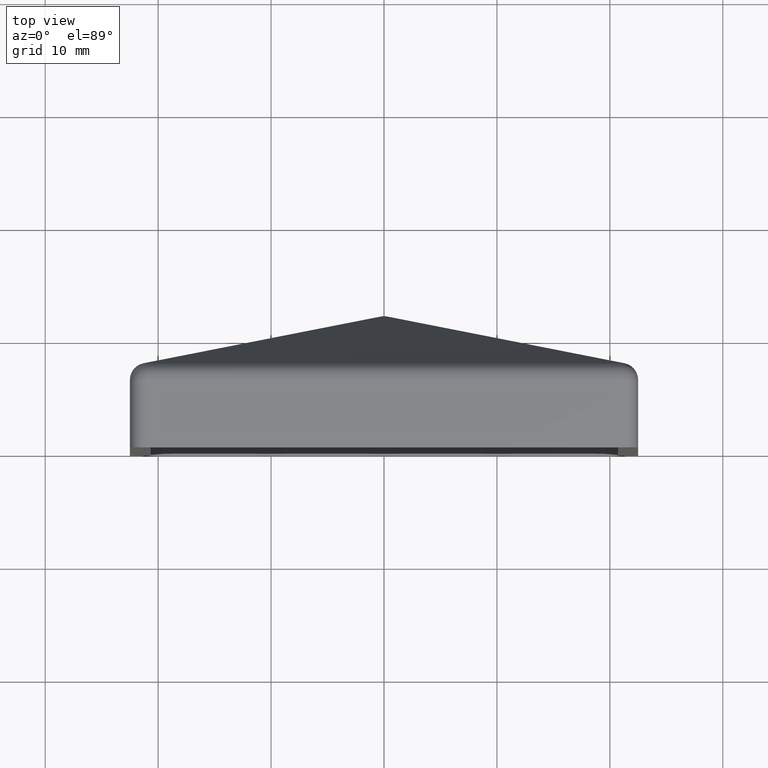
[diagram: clean part render]
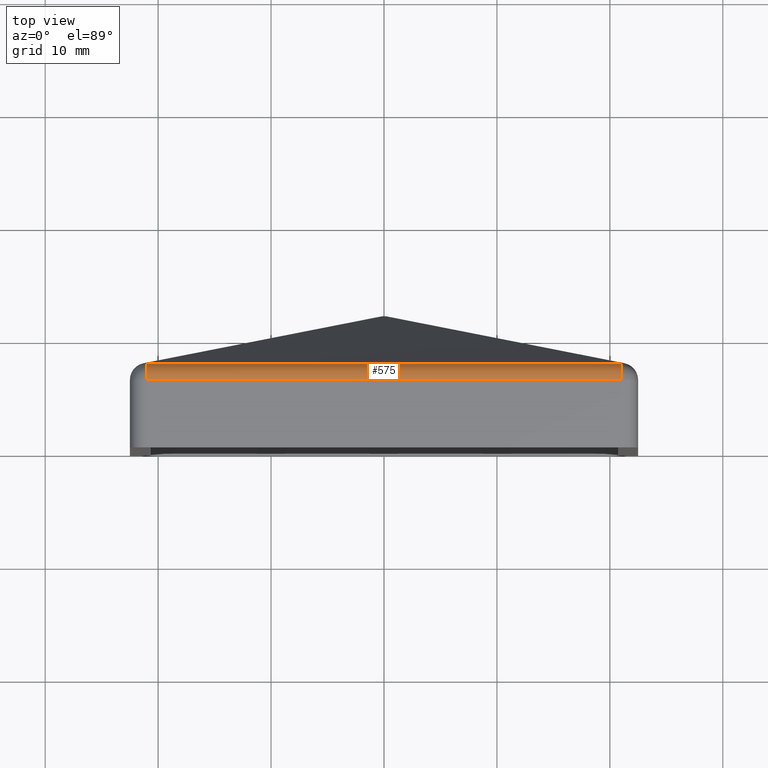
[diagram: same view with one face highlighted and labeled with its STEP entity id]
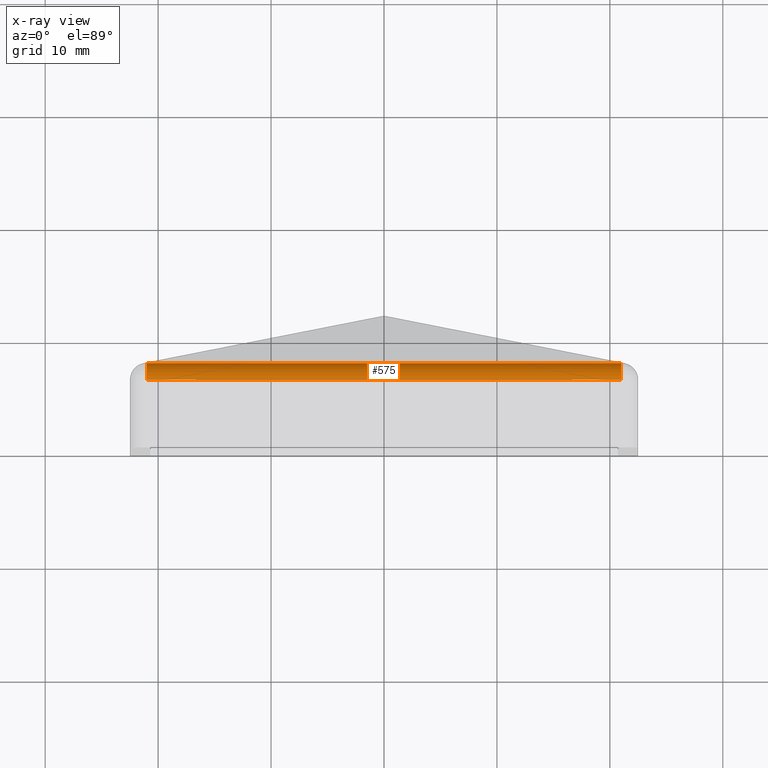
[diagram: x-ray of the same camera — body ghosted, the highlighted face saturated]
A machine part, top view. The second image highlights one B-rep face of the part: STEP entity #575.
The next image is the same camera in x-ray: the body ghosted, the highlighted face saturated — about 0% of this face is hidden behind the body in this view.
In plain terms, the highlighted cylindrical surface (edge-blend (fillet) strip) has radius 1.5 mm, axis along (-1, -0, 0).
Its self-contained STEP definition (entity closure, byte-faithful):
#39 = DIRECTION ( 'NONE',  ( 0.0000000000000000000, 0.0000000000000000000, 1.000000000000000000 ) ) ;
#575 = ADVANCED_FACE ( 'NONE', ( #4491 ), #9681, .T. ) ;
#762 = DIRECTION ( 'NONE',  ( 0.0000000000000000000, 0.0000000000000000000, 1.000000000000000000 ) ) ;
#1094 = EDGE_CURVE ( 'NONE', #7215, #6229, #13067, .T. ) ;
#1096 = VERTEX_POINT ( 'NONE', #7755 ) ;
#1799 = EDGE_CURVE ( 'NONE', #15339, #1096, #15203, .T. ) ;
#2486 = CIRCLE ( 'NONE', #12105, 1.500000000000001300 ) ;
#3152 = EDGE_CURVE ( 'NONE', #15339, #7215, #2486, .T. ) ;
#3382 = EDGE_CURVE ( 'NONE', #6229, #1096, #8291, .T. ) ;
#4491 = FACE_OUTER_BOUND ( 'NONE', #9250, .T. ) ;
#5293 = VECTOR ( 'NONE', #7694, 1000.000000000000000 ) ;
#6202 = CARTESIAN_POINT ( 'NONE',  ( 20.99999999999998900, 7.466703621116119300, 21.31429363309630500 ) ) ;
#6229 = VERTEX_POINT ( 'NONE', #11656 ) ;
#6316 = DIRECTION ( 'NONE',  ( -1.000000000000000000, -0.0000000000000000000, 2.220446049250313100E-016 ) ) ;
#6840 = CARTESIAN_POINT ( 'NONE',  ( 20.99999999999998900, 6.000000000000000900, 22.49999999999998900 ) ) ;
#7050 = DIRECTION ( 'NONE',  ( 0.0000000000000000000, 6.360652745248286900E-015, 1.000000000000000000 ) ) ;
#7215 = VERTEX_POINT ( 'NONE', #6202 ) ;
#7694 = DIRECTION ( 'NONE',  ( -1.000000000000000000, -0.0000000000000000000, 2.220446049250313100E-016 ) ) ;
#7755 = CARTESIAN_POINT ( 'NONE',  ( -20.99999999999999300, 6.000000000000000900, 22.50000000000000000 ) ) ;
#7864 = CARTESIAN_POINT ( 'NONE',  ( 22.50000000000000400, 7.466703621116119300, 21.31429363309630500 ) ) ;
#8235 = CARTESIAN_POINT ( 'NONE',  ( -20.99999999999998600, 6.000000000000000000, 20.99999999999999600 ) ) ;
#8291 = CIRCLE ( 'NONE', #8369, 1.500000000000001300 ) ;
#8369 = AXIS2_PLACEMENT_3D ( 'NONE', #8235, #12073, #7050 ) ;
#8419 = CARTESIAN_POINT ( 'NONE',  ( 20.99999999999998900, 6.000000000000000000, 20.99999999999998600 ) ) ;
#8421 = DIRECTION ( 'NONE',  ( -1.000000000000000000, -0.0000000000000000000, 2.220446049250313100E-016 ) ) ;
#9250 = EDGE_LOOP ( 'NONE', ( #11675, #13087, #14630, #12923 ) ) ;
#9681 = CYLINDRICAL_SURFACE ( 'NONE', #15732, 1.500000000000001300 ) ;
#11153 = CARTESIAN_POINT ( 'NONE',  ( 22.50000000000000400, 6.000000000000000900, 22.49999999999998900 ) ) ;
#11656 = CARTESIAN_POINT ( 'NONE',  ( -20.99999999999997500, 7.466703621116119300, 21.31429363309631600 ) ) ;
#11675 = ORIENTED_EDGE ( 'NONE', *, *, #1799, .F. ) ;
#12073 = DIRECTION ( 'NONE',  ( 1.000000000000000000, 0.0000000000000000000, -2.220446049250313100E-016 ) ) ;
#12105 = AXIS2_PLACEMENT_3D ( 'NONE', #8419, #14731, #762 ) ;
#12923 = ORIENTED_EDGE ( 'NONE', *, *, #3382, .T. ) ;
#13067 = LINE ( 'NONE', #7864, #5293 ) ;
#13087 = ORIENTED_EDGE ( 'NONE', *, *, #3152, .T. ) ;
#14630 = ORIENTED_EDGE ( 'NONE', *, *, #1094, .T. ) ;
#14731 = DIRECTION ( 'NONE',  ( -1.000000000000000000, -0.0000000000000000000, 2.220446049250313100E-016 ) ) ;
#15203 = LINE ( 'NONE', #11153, #16409 ) ;
#15339 = VERTEX_POINT ( 'NONE', #6840 ) ;
#15732 = AXIS2_PLACEMENT_3D ( 'NONE', #16520, #6316, #39 ) ;
#16409 = VECTOR ( 'NONE', #8421, 1000.000000000000000 ) ;
#16520 = CARTESIAN_POINT ( 'NONE',  ( 22.50000000000000400, 6.000000000000000000, 20.99999999999998600 ) ) ;